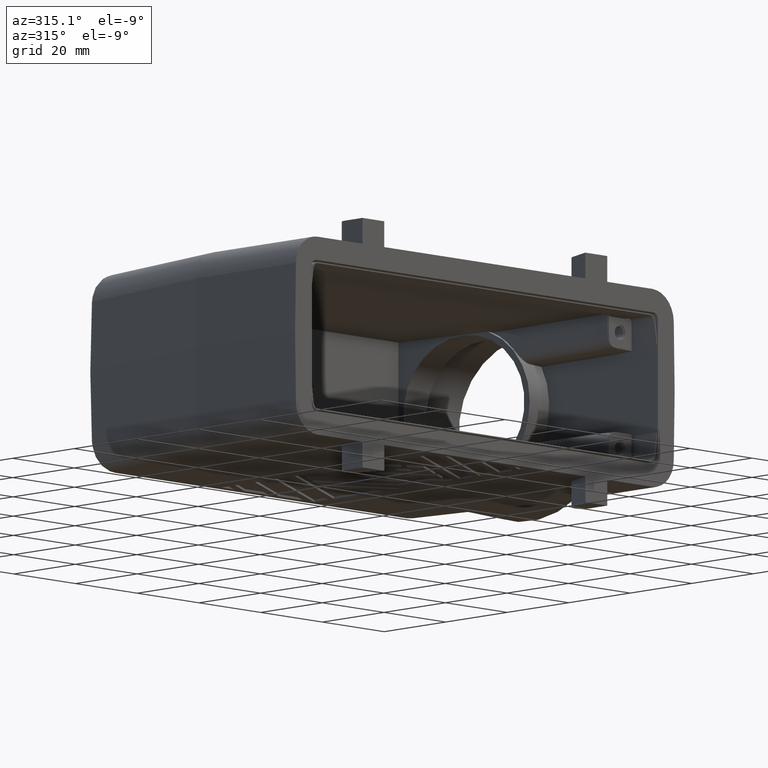
[diagram: clean part render]
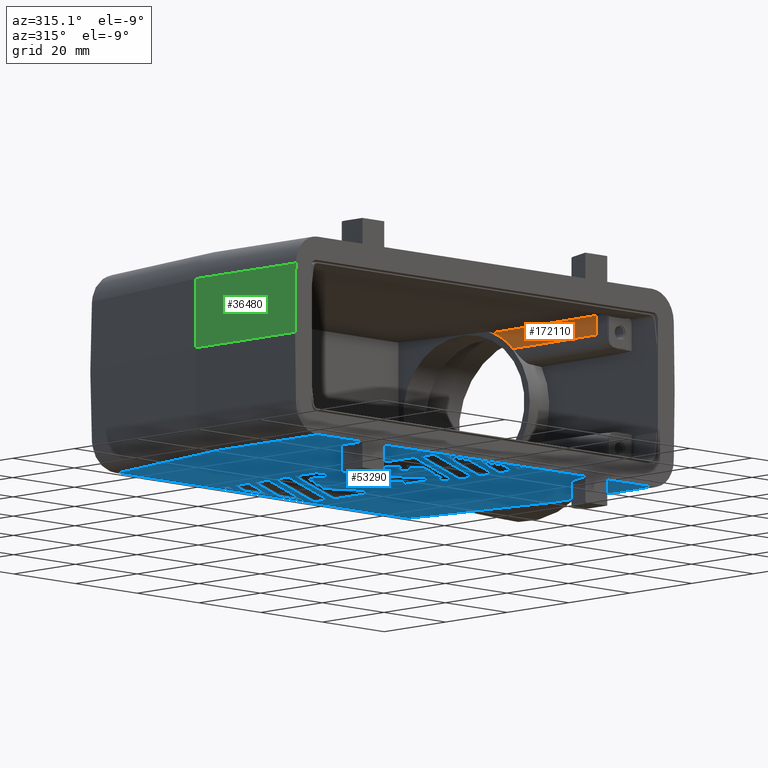
[diagram: same view with three faces highlighted in distinct colors, each labeled with its STEP entity id]
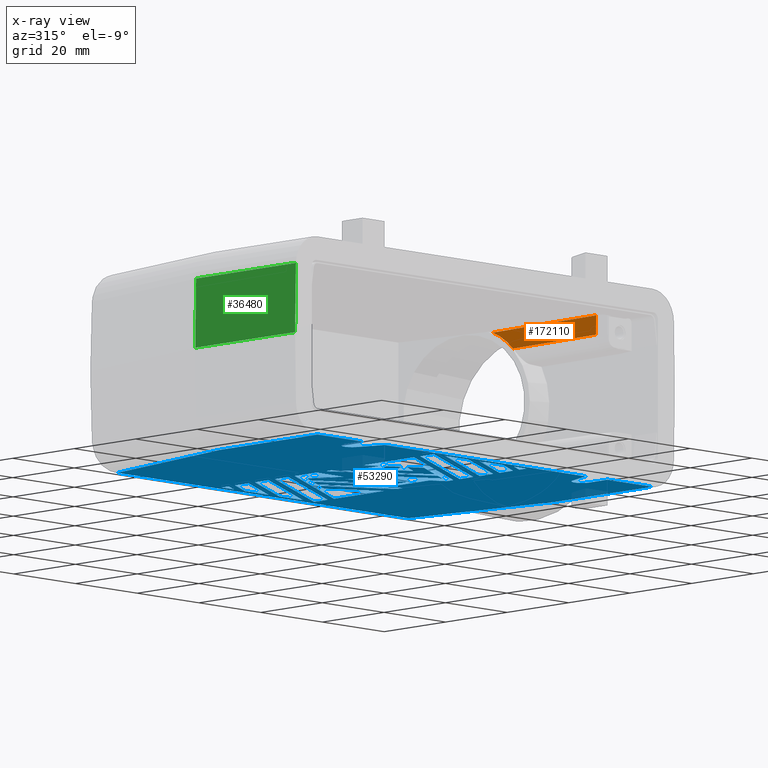
[diagram: x-ray of the same camera — body ghosted, the three highlighted faces saturated]
A machine part, auxiliary view with three faces highlighted in distinct colors.
The next image is the same camera in x-ray (body ghosted, the three faces saturated) — at least one of them is partly hidden behind the body in this view.
Their STEP definitions:

[orange] entity #172110 — the highlighted planar face has unit normal (1, 0.0087, -0).
#102100=CARTESIAN_POINT('',(-50.7159591483634,36.1002591524269,
-12.969323861527));
#102110=VERTEX_POINT('',#102100);
#102140=CARTESIAN_POINT('',(-50.7159591483634,36.1002591524269,
-12.969323861527));
#102150=DIRECTION('',(6.2842788675904E-10,7.20110849077436E-8,
-0.999999999999997));
#102160=VECTOR('',#102150,1.);
#102170=LINE('',#102140,#102160);
#102180=CARTESIAN_POINT('',(-50.7159591433167,36.1002597307246,
-17.4694571257557));
#102190=VERTEX_POINT('',#102180);
#102200=EDGE_CURVE('',#102110,#102190,#102170,.T.);
#164160=CARTESIAN_POINT('',(-50.424361898708,69.513994371855,
-17.1778598811471));
#164170=VERTEX_POINT('',#164160);
#164200=CARTESIAN_POINT('',(-50.363593568047,76.4773553529147,
-1.7767435493294E-14));
#164210=DIRECTION('',(-0.999961923064171,0.00872653549837365,
-2.13738475314579E-18));
#164220=DIRECTION('',(-0.00872653549837365,-0.999961923064171,
-4.27213066493084E-18));
#164230=AXIS2_PLACEMENT_3D('',#164200,#164210,#164220);
#164240=ELLIPSE('',#164230,18.7572443227051,18.5);
#164250=CARTESIAN_POINT('',(-50.4823175951255,62.8729293520793,
-12.7356823082891));
#164260=VERTEX_POINT('',#164250);
#164270=EDGE_CURVE('',#164170,#164260,#164240,.T.);
#167400=CARTESIAN_POINT('',(-50.5442223999294,55.7793413330826,
-12.797587113093));
#167410=DIRECTION('',(0.00872620324394394,0.99992385047757,
0.00872620324394422));
#167420=VECTOR('',#167410,1.);
#167430=LINE('',#167400,#167420);
#167440=EDGE_CURVE('',#102110,#164260,#167430,.T.);
#169360=CARTESIAN_POINT('',(-50.2097996484293,94.100393,
-3.14366483609111E-14));
#169370=DIRECTION('',(-0.999961923064171,0.00872653549837365,
-2.13738475314579E-18));
#169380=DIRECTION('',(-0.00872653549837365,-0.999961923064171,
2.44920033669954E-16));
#169390=AXIS2_PLACEMENT_3D('',#169360,#169370,#169380);
#169400=PLANE('',#169390);
#171860=CARTESIAN_POINT('',(-50.5439558563039,55.8098842073269,
-17.2974538387429));
#171870=DIRECTION('',(-0.00872620324394394,-0.99992385047757,
-0.00872620324394422));
#171880=VECTOR('',#171870,1.);
#171890=LINE('',#171860,#171880);
#171900=EDGE_CURVE('',#164170,#102190,#171890,.T.);
#172050=ORIENTED_EDGE('',*,*,#164270,.T.);
#172060=ORIENTED_EDGE('',*,*,#171900,.F.);
#172070=ORIENTED_EDGE('',*,*,#102200,.T.);
#172080=ORIENTED_EDGE('',*,*,#167440,.F.);
#172090=EDGE_LOOP('',(#172080,#172070,#172060,#172050));
#172100=FACE_OUTER_BOUND('',#172090,.T.);
#172110=ADVANCED_FACE('',(#172100),#169400,.F.);

[blue] entity #53290 — the highlighted planar face has unit normal (0, -0, -1).
#550=CARTESIAN_POINT('',(45.6034979824379,-2.16534547640347,23.));
#560=DIRECTION('',(-0.866025403784439,0.499999999999999,0.));
#570=VECTOR('',#560,1.);
#580=LINE('',#550,#570);
#590=CARTESIAN_POINT('',(-2.54650201756059,25.6340699850761,23.));
#600=VERTEX_POINT('',#590);
#610=CARTESIAN_POINT('',(-17.7465020175615,34.4097940767589,23.));
#620=VERTEX_POINT('',#610);
#630=EDGE_CURVE('',#600,#620,#580,.T.);
#2380=CARTESIAN_POINT('',(-49.8624009179002,96.2508347173039,23.));
#2390=VERTEX_POINT('',#2380);
#2420=CARTESIAN_POINT('',(-56.9932316183049,55.8098842073269,23.));
#2430=DIRECTION('',(0.17364817766693,0.984807753012208,
-2.4120833250038E-16));
#2440=VECTOR('',#2430,1.);
#2450=LINE('',#2420,#2440);
#2460=CARTESIAN_POINT('',(-53.2589778486338,76.9878897211014,23.));
#2470=VERTEX_POINT('',#2460);
#2480=EDGE_CURVE('',#2470,#2390,#2450,.T.);
#8110=CARTESIAN_POINT('',(12.2534979824388,72.9767920586257,23.));
#8120=VERTEX_POINT('',#8110);
#8290=CARTESIAN_POINT('',(12.2534979824388,77.3646541044669,23.));
#8300=VERTEX_POINT('',#8290);
#8330=CARTESIAN_POINT('',(12.2534979824388,55.8098842073269,23.));
#8340=DIRECTION('',(0.,1.,0.));
#8350=VECTOR('',#8340,1.);
#8360=LINE('',#8330,#8350);
#8370=EDGE_CURVE('',#8120,#8300,#8360,.T.);
#21600=CARTESIAN_POINT('',(-6.54650201756086,94.6851621801554,23.));
#21610=VERTEX_POINT('',#21600);
#21690=CARTESIAN_POINT('',(-14.1465020175609,94.6851621801554,23.));
#21700=VERTEX_POINT('',#21690);
#21730=CARTESIAN_POINT('',(45.6034979824379,94.6851621801554,23.));
#21740=DIRECTION('',(-1.,0.,0.));
#21750=VECTOR('',#21740,1.);
#21760=LINE('',#21730,#21750);
#21770=EDGE_CURVE('',#21610,#21700,#21760,.T.);
#41060=CARTESIAN_POINT('',(-56.9661546824022,55.9634451416428,23.));
#41070=VERTEX_POINT('',#41060);
#41080=EDGE_CURVE('',#41070,#2470,#2450,.T.);
#45420=CARTESIAN_POINT('',(12.2534979824388,32.1003930000004,23.));
#45430=VERTEX_POINT('',#45420);
#45510=CARTESIAN_POINT('',(12.2534979824388,48.4971406449864,23.));
#45520=VERTEX_POINT('',#45510);
#45550=EDGE_CURVE('',#45430,#45520,#8360,.T.);
#45760=CARTESIAN_POINT('',(-42.396502017561,29.900393,23.));
#45770=VERTEX_POINT('',#45760);
#45820=CARTESIAN_POINT('',(-39.996502017561,29.900393,23.));
#45830=DIRECTION('',(0.,0.,1.));
#45840=DIRECTION('',(1.,1.22464679914735E-16,0.));
#45850=AXIS2_PLACEMENT_3D('',#45820,#45830,#45840);
#45860=CIRCLE('',#45850,2.4);
#45870=CARTESIAN_POINT('',(-37.7412397276748,30.7212413439816,23.));
#45880=VERTEX_POINT('',#45870);
#45890=EDGE_CURVE('',#45880,#45770,#45860,.T.);
#46210=CARTESIAN_POINT('',(-56.9661546824022,55.8098842073269,23.));
#46220=DIRECTION('',(0.,1.,-2.44929359829471E-16));
#46230=VECTOR('',#46220,1.);
#46240=LINE('',#46210,#46230);
#46250=CARTESIAN_POINT('',(-56.9661546824022,24.1117412440545,23.));
#46260=VERTEX_POINT('',#46250);
#46270=EDGE_CURVE('',#46260,#41070,#46240,.T.);
#47910=CARTESIAN_POINT('',(41.192045,78.561451,23.));
#47920=DIRECTION('',(0.,0.,1.));
#47930=DIRECTION('',(1.,0.,0.));
#47940=AXIS2_PLACEMENT_3D('',#47910,#47920,#47930);
#47950=PLANE('',#47940);
#47960=CARTESIAN_POINT('',(45.6034979824379,58.1100226269936,23.));
#47970=DIRECTION('',(-0.866025403784441,0.499999999999996,0.));
#47980=VECTOR('',#47970,1.);
#47990=LINE('',#47960,#47980);
#48000=CARTESIAN_POINT('',(-17.7465020175615,94.6851621801556,23.));
#48010=VERTEX_POINT('',#48000);
#48020=EDGE_CURVE('',#8300,#48010,#47990,.T.);
#48030=ORIENTED_EDGE('',*,*,#48020,.F.);
#48040=CARTESIAN_POINT('',(-17.7465020175615,55.8098842073269,23.));
#48050=DIRECTION('',(0.,-1.,0.));
#48060=VECTOR('',#48050,1.);
#48070=LINE('',#48040,#48060);
#48080=CARTESIAN_POINT('',(-17.7465020175615,90.2973001343146,23.));
#48090=VERTEX_POINT('',#48080);
#48100=EDGE_CURVE('',#48010,#48090,#48070,.T.);
#48110=ORIENTED_EDGE('',*,*,#48100,.F.);
#48120=CARTESIAN_POINT('',(45.6034979824379,53.7221605811523,23.));
#48130=DIRECTION('',(0.86602540378444,-0.499999999999998,0.));
#48140=VECTOR('',#48130,1.);
#48150=LINE('',#48120,#48140);
#48160=EDGE_CURVE('',#48090,#8120,#48150,.T.);
#48170=ORIENTED_EDGE('',*,*,#48160,.F.);
#48180=ORIENTED_EDGE('',*,*,#8370,.F.);
#48190=EDGE_LOOP('',(#48180,#48170,#48110,#48030));
#48200=FACE_BOUND('',#48190,.T.);
#48210=CARTESIAN_POINT('',(45.6034979824379,10.7673005534443,23.));
#48220=DIRECTION('',(-0.86602540378444,0.499999999999997,0.));
#48230=VECTOR('',#48220,1.);
#48240=LINE('',#48210,#48230);
#48250=CARTESIAN_POINT('',(12.2534979824388,30.0219320309177,23.));
#48260=VERTEX_POINT('',#48250);
#48270=CARTESIAN_POINT('',(-17.7465020175615,47.3424401066065,23.));
#48280=VERTEX_POINT('',#48270);
#48290=EDGE_CURVE('',#48260,#48280,#48240,.T.);
#48300=ORIENTED_EDGE('',*,*,#48290,.F.);
#48310=CARTESIAN_POINT('',(-17.7465020175615,42.9545780607653,23.));
#48320=VERTEX_POINT('',#48310);
#48330=EDGE_CURVE('',#48280,#48320,#48070,.T.);
#48340=ORIENTED_EDGE('',*,*,#48330,.F.);
#48350=CARTESIAN_POINT('',(45.6034979824379,6.37943850760217,23.));
#48360=DIRECTION('',(0.866025403784435,-0.500000000000007,0.));
#48370=VECTOR('',#48360,1.);
#48380=LINE('',#48350,#48370);
#48390=CARTESIAN_POINT('',(12.2534979824388,25.6340699850761,23.));
#48400=VERTEX_POINT('',#48390);
#48410=EDGE_CURVE('',#48320,#48400,#48380,.T.);
#48420=ORIENTED_EDGE('',*,*,#48410,.F.);
#48430=EDGE_CURVE('',#48400,#48260,#8360,.T.);
#48440=ORIENTED_EDGE('',*,*,#48430,.F.);
#48450=EDGE_LOOP('',(#48440,#48420,#48340,#48300));
#48460=FACE_BOUND('',#48450,.T.);
#48470=ORIENTED_EDGE('',*,*,#630,.F.);
#48480=CARTESIAN_POINT('',(-17.7465020175615,55.8098842073269,23.));
#48490=DIRECTION('',(0.,-1.,0.));
#48500=VECTOR('',#48490,1.);
#48510=LINE('',#48480,#48500);
#48520=CARTESIAN_POINT('',(-17.7465020175615,30.0219320309178,23.));
#48530=VERTEX_POINT('',#48520);
#48540=EDGE_CURVE('',#620,#48530,#48510,.T.);
#48550=ORIENTED_EDGE('',*,*,#48540,.F.);
#48560=CARTESIAN_POINT('',(45.6034979824379,-6.55320752224459,23.));
#48570=DIRECTION('',(0.866025403784439,-0.499999999999999,0.));
#48580=VECTOR('',#48570,1.);
#48590=LINE('',#48560,#48580);
#48600=CARTESIAN_POINT('',(-10.1465020175606,25.6340699850761,23.));
#48610=VERTEX_POINT('',#48600);
#48620=EDGE_CURVE('',#48530,#48610,#48590,.T.);
#48630=ORIENTED_EDGE('',*,*,#48620,.F.);
#48640=CARTESIAN_POINT('',(45.6034979824379,25.6340699850761,23.));
#48650=DIRECTION('',(1.,0.,0.));
#48660=VECTOR('',#48650,1.);
#48670=LINE('',#48640,#48660);
#48680=EDGE_CURVE('',#48610,#600,#48670,.T.);
#48690=ORIENTED_EDGE('',*,*,#48680,.F.);
#48700=EDGE_LOOP('',(#48690,#48630,#48550,#48470));
#48710=FACE_BOUND('',#48700,.T.);
#48720=CARTESIAN_POINT('',(45.6034979824379,4.30097753852051,23.));
#48730=DIRECTION('',(-0.86602540378444,0.499999999999997,0.));
#48740=VECTOR('',#48730,1.);
#48750=LINE('',#48720,#48740);
#48760=CARTESIAN_POINT('',(8.65349798243954,25.6340699850761,23.));
#48770=VERTEX_POINT('',#48760);
#48780=CARTESIAN_POINT('',(-17.7465020175615,40.8761170916827,23.));
#48790=VERTEX_POINT('',#48780);
#48800=EDGE_CURVE('',#48770,#48790,#48750,.T.);
#48810=ORIENTED_EDGE('',*,*,#48800,.F.);
#48820=CARTESIAN_POINT('',(-17.7465020175615,36.4882550458416,23.));
#48830=VERTEX_POINT('',#48820);
#48840=EDGE_CURVE('',#48790,#48830,#48070,.T.);
#48850=ORIENTED_EDGE('',*,*,#48840,.F.);
#48860=CARTESIAN_POINT('',(45.6034979824379,-0.086884507320967,23.));
#48870=DIRECTION('',(0.866025403784438,-0.500000000000001,0.));
#48880=VECTOR('',#48870,1.);
#48890=LINE('',#48860,#48880);
#48900=CARTESIAN_POINT('',(1.05349798243933,25.6340699850761,23.));
#48910=VERTEX_POINT('',#48900);
#48920=EDGE_CURVE('',#48830,#48910,#48890,.T.);
#48930=ORIENTED_EDGE('',*,*,#48920,.F.);
#48940=CARTESIAN_POINT('',(45.6034979824379,25.6340699850761,23.));
#48950=DIRECTION('',(1.,0.,0.));
#48960=VECTOR('',#48950,1.);
#48970=LINE('',#48940,#48960);
#48980=EDGE_CURVE('',#48910,#48770,#48970,.T.);
#48990=ORIENTED_EDGE('',*,*,#48980,.F.);
#49000=EDGE_LOOP('',(#48990,#48930,#48850,#48810));
#49010=FACE_BOUND('',#49000,.T.);
#49020=CARTESIAN_POINT('',(45.6034979824379,66.6548066109998,23.));
#49030=DIRECTION('',(0.866025403784438,-0.5,0.));
#49040=VECTOR('',#49030,1.);
#49050=LINE('',#49020,#49040);
#49060=CARTESIAN_POINT('',(-2.94650201756078,94.6851621801554,23.));
#49070=VERTEX_POINT('',#49060);
#49080=CARTESIAN_POINT('',(12.2534979824388,85.9094380884733,23.));
#49090=VERTEX_POINT('',#49080);
#49100=EDGE_CURVE('',#49070,#49090,#49050,.T.);
#49110=ORIENTED_EDGE('',*,*,#49100,.F.);
#49120=CARTESIAN_POINT('',(12.2534979824388,90.2973001343145,23.));
#49130=VERTEX_POINT('',#49120);
#49140=EDGE_CURVE('',#49090,#49130,#8360,.T.);
#49150=ORIENTED_EDGE('',*,*,#49140,.F.);
#49160=CARTESIAN_POINT('',(45.6034979824379,71.0426686568409,23.));
#49170=DIRECTION('',(-0.866025403784439,0.5,0.));
#49180=VECTOR('',#49170,1.);
#49190=LINE('',#49160,#49180);
#49200=CARTESIAN_POINT('',(4.65349798243919,94.6851621801554,23.));
#49210=VERTEX_POINT('',#49200);
#49220=EDGE_CURVE('',#49130,#49210,#49190,.T.);
#49230=ORIENTED_EDGE('',*,*,#49220,.F.);
#49240=EDGE_CURVE('',#49210,#49070,#21760,.T.);
#49250=ORIENTED_EDGE('',*,*,#49240,.F.);
#49260=EDGE_LOOP('',(#49250,#49230,#49150,#49110));
#49270=FACE_BOUND('',#49260,.T.);
#49280=CARTESIAN_POINT('',(12.2534979824388,94.6851621801554,23.));
#49290=VERTEX_POINT('',#49280);
#49300=CARTESIAN_POINT('',(8.25349798243919,94.6851621801554,23.));
#49310=VERTEX_POINT('',#49300);
#49320=EDGE_CURVE('',#49290,#49310,#21760,.T.);
#49330=ORIENTED_EDGE('',*,*,#49320,.F.);
#49340=CARTESIAN_POINT('',(45.6034979824379,73.1211296259236,23.));
#49350=DIRECTION('',(0.866025403784439,-0.499999999999999,0.));
#49360=VECTOR('',#49350,1.);
#49370=LINE('',#49340,#49360);
#49380=CARTESIAN_POINT('',(12.2534979824388,92.3757611033971,23.));
#49390=VERTEX_POINT('',#49380);
#49400=EDGE_CURVE('',#49310,#49390,#49370,.T.);
#49410=ORIENTED_EDGE('',*,*,#49400,.F.);
#49420=EDGE_CURVE('',#49390,#49290,#8360,.T.);
#49430=ORIENTED_EDGE('',*,*,#49420,.F.);
#49440=EDGE_LOOP('',(#49430,#49410,#49330));
#49450=FACE_BOUND('',#49440,.T.);
#49460=CARTESIAN_POINT('',(45.6034979824379,64.5763456419172,23.));
#49470=DIRECTION('',(-0.86602540378444,0.499999999999998,0.));
#49480=VECTOR('',#49470,1.);
#49490=LINE('',#49460,#49480);
#49500=CARTESIAN_POINT('',(12.2534979824388,83.8309771193907,23.));
#49510=VERTEX_POINT('',#49500);
#49520=EDGE_CURVE('',#49510,#21610,#49490,.T.);
#49530=ORIENTED_EDGE('',*,*,#49520,.F.);
#49540=ORIENTED_EDGE('',*,*,#21770,.F.);
#49550=CARTESIAN_POINT('',(45.6034979824379,60.1884835960761,23.));
#49560=DIRECTION('',(0.86602540378444,-0.499999999999998,0.));
#49570=VECTOR('',#49560,1.);
#49580=LINE('',#49550,#49570);
#49590=CARTESIAN_POINT('',(12.2534979824388,79.4431150735496,23.));
#49600=VERTEX_POINT('',#49590);
#49610=EDGE_CURVE('',#21700,#49600,#49580,.T.);
#49620=ORIENTED_EDGE('',*,*,#49610,.F.);
#49630=EDGE_CURVE('',#49600,#49510,#8360,.T.);
#49640=ORIENTED_EDGE('',*,*,#49630,.F.);
#49650=EDGE_LOOP('',(#49640,#49620,#49540,#49530));
#49660=FACE_BOUND('',#49650,.T.);
#49670=CARTESIAN_POINT('',(45.6034979824379,-8.63166849132722,23.));
#49680=DIRECTION('',(-0.866025403784439,0.499999999999999,0.));
#49690=VECTOR('',#49680,1.);
#49700=LINE('',#49670,#49690);
#49710=CARTESIAN_POINT('',(-13.7465020175606,25.6340699850761,23.));
#49720=VERTEX_POINT('',#49710);
#49730=CARTESIAN_POINT('',(-17.7465020175615,27.9434710618351,23.));
#49740=VERTEX_POINT('',#49730);
#49750=EDGE_CURVE('',#49720,#49740,#49700,.T.);
#49760=ORIENTED_EDGE('',*,*,#49750,.F.);
#49770=CARTESIAN_POINT('',(-17.7465020175615,55.8098842073269,23.));
#49780=DIRECTION('',(0.,-1.,0.));
#49790=VECTOR('',#49780,1.);
#49800=LINE('',#49770,#49790);
#49810=CARTESIAN_POINT('',(-17.7465020175615,25.6340699850761,23.));
#49820=VERTEX_POINT('',#49810);
#49830=EDGE_CURVE('',#49740,#49820,#49800,.T.);
#49840=ORIENTED_EDGE('',*,*,#49830,.F.);
#49850=CARTESIAN_POINT('',(45.6034979824379,25.6340699850761,23.));
#49860=DIRECTION('',(1.,0.,0.));
#49870=VECTOR('',#49860,1.);
#49880=LINE('',#49850,#49870);
#49890=EDGE_CURVE('',#49820,#49720,#49880,.T.);
#49900=ORIENTED_EDGE('',*,*,#49890,.F.);
#49910=EDGE_LOOP('',(#49900,#49840,#49760));
#49920=FACE_BOUND('',#49910,.T.);
#49930=CARTESIAN_POINT('',(45.6034979824379,79.991597829279,23.));
#49940=DIRECTION('',(-0.866025403784438,-0.500000000000001,0.));
#49950=VECTOR('',#49940,1.);
#49960=LINE('',#49930,#49950);
#49970=CARTESIAN_POINT('',(12.2534979824388,60.7369663518054,23.));
#49980=VERTEX_POINT('',#49970);
#49990=CARTESIAN_POINT('',(-10.7465020175609,47.4579101604442,23.));
#50000=VERTEX_POINT('',#49990);
#50010=EDGE_CURVE('',#49980,#50000,#49960,.T.);
#50020=ORIENTED_EDGE('',*,*,#50010,.F.);
#50030=CARTESIAN_POINT('',(45.6034979824379,14.9242224916092,23.));
#50040=DIRECTION('',(-0.866025403784438,0.500000000000002,0.));
#50050=VECTOR('',#50040,1.);
#50060=LINE('',#50030,#50050);
#50070=CARTESIAN_POINT('',(-14.3465020175608,49.5363711295267,23.));
#50080=VERTEX_POINT('',#50070);
#50090=EDGE_CURVE('',#50000,#50080,#50060,.T.);
#50100=ORIENTED_EDGE('',*,*,#50090,.F.);
#50110=CARTESIAN_POINT('',(45.6034979824379,84.1485197674443,23.));
#50120=DIRECTION('',(0.866025403784437,0.500000000000002,0.));
#50130=VECTOR('',#50120,1.);
#50140=LINE('',#50110,#50130);
#50150=CARTESIAN_POINT('',(4.0534979824392,60.1596160826159,23.));
#50160=VERTEX_POINT('',#50150);
#50170=EDGE_CURVE('',#50080,#50160,#50140,.T.);
#50180=ORIENTED_EDGE('',*,*,#50170,.F.);
#50190=CARTESIAN_POINT('',(45.6034979824379,60.1596160826159,23.));
#50200=DIRECTION('',(-1.,0.,0.));
#50210=VECTOR('',#50200,1.);
#50220=LINE('',#50190,#50210);
#50230=CARTESIAN_POINT('',(-2.74650201756101,60.1596160826159,23.));
#50240=VERTEX_POINT('',#50230);
#50250=EDGE_CURVE('',#50160,#50240,#50220,.T.);
#50260=ORIENTED_EDGE('',*,*,#50250,.F.);
#50270=CARTESIAN_POINT('',(-5.25782088666184,55.8098842073269,23.));
#50280=DIRECTION('',(0.500000000000001,0.866025403784438,0.));
#50290=VECTOR('',#50280,1.);
#50300=LINE('',#50270,#50290);
#50310=CARTESIAN_POINT('',(0.653497982439106,66.0485888283503,23.));
#50320=VERTEX_POINT('',#50310);
#50330=EDGE_CURVE('',#50240,#50320,#50300,.T.);
#50340=ORIENTED_EDGE('',*,*,#50330,.F.);
#50350=CARTESIAN_POINT('',(45.6034979824379,92.0004834284235,23.));
#50360=DIRECTION('',(-0.866025403784437,-0.500000000000002,0.));
#50370=VECTOR('',#50360,1.);
#50380=LINE('',#50350,#50370);
#50390=CARTESIAN_POINT('',(-12.346502017561,58.543035328885,23.));
#50400=VERTEX_POINT('',#50390);
#50410=EDGE_CURVE('',#50320,#50400,#50380,.T.);
#50420=ORIENTED_EDGE('',*,*,#50410,.F.);
#50430=CARTESIAN_POINT('',(-12.3465020175609,55.8098842073269,23.));
#50440=DIRECTION('',(-2.73488026507881E-14,1.,0.));
#50450=VECTOR('',#50440,1.);
#50460=LINE('',#50430,#50450);
#50470=CARTESIAN_POINT('',(-12.3465020175611,62.6999572670504,23.));
#50480=VERTEX_POINT('',#50470);
#50490=EDGE_CURVE('',#50400,#50480,#50460,.T.);
#50500=ORIENTED_EDGE('',*,*,#50490,.F.);
#50510=CARTESIAN_POINT('',(45.6034979824379,96.1574053665883,23.));
#50520=DIRECTION('',(0.866025403784442,0.499999999999995,0.));
#50530=VECTOR('',#50520,1.);
#50540=LINE('',#50510,#50530);
#50550=CARTESIAN_POINT('',(5.25349798243882,72.8613220047877,23.));
#50560=VERTEX_POINT('',#50550);
#50570=EDGE_CURVE('',#50480,#50560,#50540,.T.);
#50580=ORIENTED_EDGE('',*,*,#50570,.F.);
#50590=CARTESIAN_POINT('',(45.6034979824379,49.5652386429864,23.));
#50600=DIRECTION('',(0.866025403784434,-0.500000000000007,0.));
#50610=VECTOR('',#50600,1.);
#50620=LINE('',#50590,#50610);
#50630=CARTESIAN_POINT('',(7.87118943606294,71.3499971393824,23.));
#50640=VERTEX_POINT('',#50630);
#50650=EDGE_CURVE('',#50560,#50640,#50620,.T.);
#50660=ORIENTED_EDGE('',*,*,#50650,.F.);
#50670=CARTESIAN_POINT('',(-1.10089894849657,55.8098842073269,23.));
#50680=DIRECTION('',(-0.500000000000002,-0.866025403784437,0.));
#50690=VECTOR('',#50680,1.);
#50700=LINE('',#50670,#50690);
#50710=CARTESIAN_POINT('',(3.488880889687,63.759616082616,23.));
#50720=VERTEX_POINT('',#50710);
#50730=EDGE_CURVE('',#50640,#50720,#50700,.T.);
#50740=ORIENTED_EDGE('',*,*,#50730,.F.);
#50750=CARTESIAN_POINT('',(45.6034979824379,63.7596160826152,23.));
#50760=DIRECTION('',(1.,-1.93553325111048E-14,0.));
#50770=VECTOR('',#50760,1.);
#50780=LINE('',#50750,#50770);
#50790=CARTESIAN_POINT('',(12.2534979824388,63.7596160826159,23.));
#50800=VERTEX_POINT('',#50790);
#50810=EDGE_CURVE('',#50720,#50800,#50780,.T.);
#50820=ORIENTED_EDGE('',*,*,#50810,.F.);
#50830=CARTESIAN_POINT('',(12.2534979824388,70.8983310895431,23.));
#50840=VERTEX_POINT('',#50830);
#50850=EDGE_CURVE('',#50800,#50840,#8360,.T.);
#50860=ORIENTED_EDGE('',*,*,#50850,.F.);
#50870=CARTESIAN_POINT('',(45.6034979824379,51.6436996120697,23.));
#50880=DIRECTION('',(-0.86602540378444,0.499999999999997,0.));
#50890=VECTOR('',#50880,1.);
#50900=LINE('',#50870,#50890);
#50910=CARTESIAN_POINT('',(-17.7465020175615,88.2188391652319,23.));
#50920=VERTEX_POINT('',#50910);
#50930=EDGE_CURVE('',#50840,#50920,#50900,.T.);
#50940=ORIENTED_EDGE('',*,*,#50930,.F.);
#50950=CARTESIAN_POINT('',(-17.7465020175615,72.0530316279218,23.));
#50960=VERTEX_POINT('',#50950);
#50970=EDGE_CURVE('',#50920,#50960,#48070,.T.);
#50980=ORIENTED_EDGE('',*,*,#50970,.F.);
#50990=CARTESIAN_POINT('',(45.6034979824379,108.628171181086,23.));
#51000=DIRECTION('',(0.866025403784431,0.500000000000014,0.));
#51010=VECTOR('',#51000,1.);
#51020=LINE('',#50990,#51010);
#51030=CARTESIAN_POINT('',(-5.54650201756107,79.0967049120357,23.));
#51040=VERTEX_POINT('',#51030);
#51050=EDGE_CURVE('',#50960,#51040,#51020,.T.);
#51060=ORIENTED_EDGE('',*,*,#51050,.F.);
#51070=CARTESIAN_POINT('',(-1.94650201756119,77.0182439429531,23.));
#51080=VERTEX_POINT('',#51070);
#51090=EDGE_CURVE('',#51040,#51080,#50620,.T.);
#51100=ORIENTED_EDGE('',*,*,#51090,.F.);
#51110=CARTESIAN_POINT('',(45.6034979824379,104.47124924292,23.));
#51120=DIRECTION('',(-0.866025403784436,-0.500000000000005,0.));
#51130=VECTOR('',#51120,1.);
#51140=LINE('',#51110,#51130);
#51150=CARTESIAN_POINT('',(-17.7465020175615,67.8961096897567,23.));
#51160=VERTEX_POINT('',#51150);
#51170=EDGE_CURVE('',#51080,#51160,#51140,.T.);
#51180=ORIENTED_EDGE('',*,*,#51170,.F.);
#51190=CARTESIAN_POINT('',(-17.7465020175615,65.8176487206742,23.));
#51200=VERTEX_POINT('',#51190);
#51210=EDGE_CURVE('',#51160,#51200,#48070,.T.);
#51220=ORIENTED_EDGE('',*,*,#51210,.F.);
#51230=CARTESIAN_POINT('',(45.6034979824379,102.392788273836,23.));
#51240=DIRECTION('',(0.866025403784443,0.499999999999993,0.));
#51250=VECTOR('',#51240,1.);
#51260=LINE('',#51230,#51250);
#51270=CARTESIAN_POINT('',(-0.146502017561097,75.9790134584117,23.));
#51280=VERTEX_POINT('',#51270);
#51290=EDGE_CURVE('',#51200,#51280,#51260,.T.);
#51300=ORIENTED_EDGE('',*,*,#51290,.F.);
#51310=CARTESIAN_POINT('',(3.45349798243913,73.9005524893289,23.));
#51320=VERTEX_POINT('',#51310);
#51330=EDGE_CURVE('',#51280,#51320,#50620,.T.);
#51340=ORIENTED_EDGE('',*,*,#51330,.F.);
#51350=CARTESIAN_POINT('',(45.6034979824379,98.2358663356705,23.));
#51360=DIRECTION('',(-0.866025403784443,-0.499999999999993,0.));
#51370=VECTOR('',#51360,1.);
#51380=LINE('',#51350,#51370);
#51390=CARTESIAN_POINT('',(-14.1465020175609,63.7391877515916,23.));
#51400=VERTEX_POINT('',#51390);
#51410=EDGE_CURVE('',#51320,#51400,#51380,.T.);
#51420=ORIENTED_EDGE('',*,*,#51410,.F.);
#51430=CARTESIAN_POINT('',(-14.1465020175611,55.8098842073269,23.));
#51440=DIRECTION('',(-2.37748113952881E-14,-1.,0.));
#51450=VECTOR('',#51440,1.);
#51460=LINE('',#51430,#51450);
#51470=CARTESIAN_POINT('',(-14.1465020175612,53.5778230138544,23.));
#51480=VERTEX_POINT('',#51470);
#51490=EDGE_CURVE('',#51400,#51480,#51460,.T.);
#51500=ORIENTED_EDGE('',*,*,#51490,.F.);
#51510=CARTESIAN_POINT('',(45.6034979824379,88.0745015979393,23.));
#51520=DIRECTION('',(-0.866025403784406,-0.500000000000057,0.));
#51530=VECTOR('',#51520,1.);
#51540=LINE('',#51510,#51530);
#51550=CARTESIAN_POINT('',(-17.7465020175615,51.4993620447712,23.));
#51560=VERTEX_POINT('',#51550);
#51570=EDGE_CURVE('',#51480,#51560,#51540,.T.);
#51580=ORIENTED_EDGE('',*,*,#51570,.F.);
#51590=CARTESIAN_POINT('',(-17.7465020175615,49.4209010756891,23.));
#51600=VERTEX_POINT('',#51590);
#51610=EDGE_CURVE('',#51560,#51600,#48070,.T.);
#51620=ORIENTED_EDGE('',*,*,#51610,.F.);
#51630=CARTESIAN_POINT('',(45.6034979824379,12.845761522527,23.));
#51640=DIRECTION('',(0.86602540378444,-0.499999999999997,0.));
#51650=VECTOR('',#51640,1.);
#51660=LINE('',#51630,#51650);
#51670=EDGE_CURVE('',#51600,#45430,#51660,.T.);
#51680=ORIENTED_EDGE('',*,*,#51670,.F.);
#51690=ORIENTED_EDGE('',*,*,#45550,.F.);
#51700=CARTESIAN_POINT('',(45.6034979824379,67.7517721224627,23.));
#51710=DIRECTION('',(-0.866025403784408,-0.500000000000054,0.));
#51720=VECTOR('',#51710,1.);
#51730=LINE('',#51700,#51720);
#51740=CARTESIAN_POINT('',(8.65349798243906,46.4186796759036,23.));
#51750=VERTEX_POINT('',#51740);
#51760=EDGE_CURVE('',#45520,#51750,#51730,.T.);
#51770=ORIENTED_EDGE('',*,*,#51760,.F.);
#51780=CARTESIAN_POINT('',(8.65349798243911,55.8098842073269,23.));
#51790=DIRECTION('',(4.73344661263653E-15,1.,0.));
#51800=VECTOR('',#51790,1.);
#51810=LINE('',#51780,#51800);
#51820=CARTESIAN_POINT('',(8.65349798243908,52.4231224754753,23.));
#51830=VERTEX_POINT('',#51820);
#51840=EDGE_CURVE('',#51750,#51830,#51810,.T.);
#51850=ORIENTED_EDGE('',*,*,#51840,.F.);
#51860=CARTESIAN_POINT('',(45.6034979824379,73.7562149220315,23.));
#51870=DIRECTION('',(-0.866025403784436,-0.500000000000004,0.));
#51880=VECTOR('',#51870,1.);
#51890=LINE('',#51860,#51880);
#51900=CARTESIAN_POINT('',(5.01234370925079,50.320901075689,23.));
#51910=VERTEX_POINT('',#51900);
#51920=EDGE_CURVE('',#51830,#51910,#51890,.T.);
#51930=ORIENTED_EDGE('',*,*,#51920,.F.);
#51940=CARTESIAN_POINT('',(1.84327782062231,55.8098842073269,23.));
#51950=DIRECTION('',(0.500000000000007,-0.866025403784435,0.));
#51960=VECTOR('',#51950,1.);
#51970=LINE('',#51940,#51960);
#51980=CARTESIAN_POINT('',(7.61234370925067,45.8175689760102,23.));
#51990=VERTEX_POINT('',#51980);
#52000=EDGE_CURVE('',#51910,#51990,#51970,.T.);
#52010=ORIENTED_EDGE('',*,*,#52000,.F.);
#52020=CARTESIAN_POINT('',(4.49465225562685,44.0175689760101,23.));
#52030=VERTEX_POINT('',#52020);
#52040=EDGE_CURVE('',#51990,#52030,#51730,.T.);
#52050=ORIENTED_EDGE('',*,*,#52040,.F.);
#52060=CARTESIAN_POINT('',(-2.31364411754303,55.8098842073269,23.));
#52070=DIRECTION('',(-0.500000000000011,0.866025403784432,0.));
#52080=VECTOR('',#52070,1.);
#52090=LINE('',#52060,#52080);
#52100=CARTESIAN_POINT('',(1.89465225562684,48.520901075689,23.));
#52110=VERTEX_POINT('',#52100);
#52120=EDGE_CURVE('',#52030,#52110,#52090,.T.);
#52130=ORIENTED_EDGE('',*,*,#52120,.F.);
#52140=CARTESIAN_POINT('',(-1.74650201756113,46.418679675903,23.));
#52150=VERTEX_POINT('',#52140);
#52160=EDGE_CURVE('',#52110,#52150,#51890,.T.);
#52170=ORIENTED_EDGE('',*,*,#52160,.F.);
#52180=CARTESIAN_POINT('',(45.6034979824379,19.0811444297743,23.));
#52190=DIRECTION('',(0.866025403784435,-0.500000000000006,0.));
#52200=VECTOR('',#52190,1.);
#52210=LINE('',#52180,#52200);
#52220=CARTESIAN_POINT('',(3.45349798243875,43.4164582761169,23.));
#52230=VERTEX_POINT('',#52220);
#52240=EDGE_CURVE('',#52150,#52230,#52210,.T.);
#52250=ORIENTED_EDGE('',*,*,#52240,.F.);
#52260=CARTESIAN_POINT('',(-0.146502017560991,41.3379973070341,23.));
#52270=VERTEX_POINT('',#52260);
#52280=EDGE_CURVE('',#52230,#52270,#51730,.T.);
#52290=ORIENTED_EDGE('',*,*,#52280,.F.);
#52300=CARTESIAN_POINT('',(-8.94650201756119,46.418679675903,23.));
#52310=VERTEX_POINT('',#52300);
#52320=EDGE_CURVE('',#52270,#52310,#50060,.T.);
#52330=ORIENTED_EDGE('',*,*,#52320,.F.);
#52340=CARTESIAN_POINT('',(45.6034979824379,77.9131368601953,23.));
#52350=DIRECTION('',(0.866025403784447,0.499999999999985,0.));
#52360=VECTOR('',#52350,1.);
#52370=LINE('',#52340,#52360);
#52380=CARTESIAN_POINT('',(12.2534979824388,58.6585053827225,23.));
#52390=VERTEX_POINT('',#52380);
#52400=EDGE_CURVE('',#52310,#52390,#52370,.T.);
#52410=ORIENTED_EDGE('',*,*,#52400,.F.);
#52420=EDGE_CURVE('',#52390,#49980,#8360,.T.);
#52430=ORIENTED_EDGE('',*,*,#52420,.F.);
#52440=EDGE_LOOP('',(#52430,#52410,#52330,#52290,#52250,#52170,#52130,
#52050,#52010,#51930,#51850,#51770,#51690,#51680,#51620,#51580,#51500,
#51420,#51340,#51300,#51220,#51180,#51100,#51060,#50980,#50940,#50860,
#50820,#50740,#50660,#50580,#50500,#50420,#50340,#50260,#50180,#50100,
#50020));
#52450=FACE_BOUND('',#52440,.T.);
#52460=CARTESIAN_POINT('',(41.3797549129457,55.8098842073269,23.));
#52470=DIRECTION('',(-0.34202014332567,-0.939692620785908,0.));
#52480=VECTOR('',#52470,1.);
#52490=LINE('',#52460,#52480);
#52500=CARTESIAN_POINT('',(32.2482356925528,30.7212413439816,23.));
#52510=VERTEX_POINT('',#52500);
#52520=CARTESIAN_POINT('',(29.8425743927999,24.1117412440545,23.));
#52530=VERTEX_POINT('',#52520);
#52540=EDGE_CURVE('',#52510,#52530,#52490,.T.);
#52550=ORIENTED_EDGE('',*,*,#52540,.F.);
#52560=CARTESIAN_POINT('',(45.6034979824379,24.1117412440545,23.));
#52570=DIRECTION('',(1.,0.,-0.));
#52580=VECTOR('',#52570,1.);
#52590=LINE('',#52560,#52580);
#52600=CARTESIAN_POINT('',(-35.3355784279219,24.1117412440545,23.));
#52610=VERTEX_POINT('',#52600);
#52620=EDGE_CURVE('',#52610,#52530,#52590,.T.);
#52630=ORIENTED_EDGE('',*,*,#52620,.T.);
#52640=CARTESIAN_POINT('',(-46.8727589480677,55.8098842073269,23.));
#52650=DIRECTION('',(-0.342020143325669,0.939692620785908,0.));
#52660=VECTOR('',#52650,1.);
#52670=LINE('',#52640,#52660);
#52680=EDGE_CURVE('',#52610,#45880,#52670,.T.);
#52690=ORIENTED_EDGE('',*,*,#52680,.F.);
#52700=ORIENTED_EDGE('',*,*,#45890,.F.);
#52710=CARTESIAN_POINT('',(-42.396502017561,55.8098842073269,23.));
#52720=DIRECTION('',(-0.,-1.,0.));
#52730=VECTOR('',#52720,1.);
#52740=LINE('',#52710,#52730);
#52750=CARTESIAN_POINT('',(-42.396502017561,24.1117412440545,23.));
#52760=VERTEX_POINT('',#52750);
#52770=EDGE_CURVE('',#45770,#52760,#52740,.T.);
#52780=ORIENTED_EDGE('',*,*,#52770,.F.);
#52790=EDGE_CURVE('',#46260,#52760,#52590,.T.);
#52800=ORIENTED_EDGE('',*,*,#52790,.T.);
#52810=ORIENTED_EDGE('',*,*,#46270,.F.);
#52820=ORIENTED_EDGE('',*,*,#41080,.F.);
#52830=ORIENTED_EDGE('',*,*,#2480,.F.);
#52840=CARTESIAN_POINT('',(45.6034979824379,96.2508347173039,23.));
#52850=DIRECTION('',(-1.,0.,1.49975978266186E-32));
#52860=VECTOR('',#52850,1.);
#52870=LINE('',#52840,#52860);
#52880=CARTESIAN_POINT('',(44.3693968827781,96.2508347173039,23.));
#52890=VERTEX_POINT('',#52880);
#52900=EDGE_CURVE('',#52890,#2390,#52870,.T.);
#52910=ORIENTED_EDGE('',*,*,#52900,.T.);
#52920=CARTESIAN_POINT('',(51.5002275831829,55.8098842073269,23.));
#52930=DIRECTION('',(-0.17364817766693,0.984807753012208,
-2.4120833250038E-16));
#52940=VECTOR('',#52930,1.);
#52950=LINE('',#52920,#52940);
#52960=CARTESIAN_POINT('',(51.4731506472802,55.9634451416428,23.));
#52970=VERTEX_POINT('',#52960);
#52980=EDGE_CURVE('',#52970,#52890,#52950,.T.);
#52990=ORIENTED_EDGE('',*,*,#52980,.T.);
#53000=CARTESIAN_POINT('',(51.4731506472802,55.8098842073269,23.));
#53010=DIRECTION('',(2.13762893932512E-18,1.,-2.44929359829471E-16));
#53020=VECTOR('',#53010,1.);
#53030=LINE('',#53000,#53020);
#53040=CARTESIAN_POINT('',(51.4731506472802,24.1117412440545,23.));
#53050=VERTEX_POINT('',#53040);
#53060=EDGE_CURVE('',#53050,#52970,#53030,.T.);
#53070=ORIENTED_EDGE('',*,*,#53060,.T.);
#53080=CARTESIAN_POINT('',(36.903497982439,24.1117412440545,23.));
#53090=VERTEX_POINT('',#53080);
#53100=EDGE_CURVE('',#53090,#53050,#52590,.T.);
#53110=ORIENTED_EDGE('',*,*,#53100,.T.);
#53120=CARTESIAN_POINT('',(36.903497982439,55.8098842073269,23.));
#53130=DIRECTION('',(-0.,1.,0.));
#53140=VECTOR('',#53130,1.);
#53150=LINE('',#53120,#53140);
#53160=CARTESIAN_POINT('',(36.903497982439,29.900393,23.));
#53170=VERTEX_POINT('',#53160);
#53180=EDGE_CURVE('',#53090,#53170,#53150,.T.);
#53190=ORIENTED_EDGE('',*,*,#53180,.F.);
#53200=CARTESIAN_POINT('',(34.503497982439,29.900393,23.));
#53210=DIRECTION('',(0.,0.,-1.));
#53220=DIRECTION('',(-1.,1.22464679914735E-16,0.));
#53230=AXIS2_PLACEMENT_3D('',#53200,#53210,#53220);
#53240=CIRCLE('',#53230,2.4);
#53250=EDGE_CURVE('',#52510,#53170,#53240,.T.);
#53260=ORIENTED_EDGE('',*,*,#53250,.T.);
#53270=EDGE_LOOP('',(#53260,#53190,#53110,#53070,#52990,#52910,#52830,
#52820,#52810,#52800,#52780,#52700,#52690,#52630,#52550));
#53280=FACE_OUTER_BOUND('',#53270,.T.);
#53290=ADVANCED_FACE('',(#48200,#48460,#48710,#49010,#49270,#49450,
#49660,#49920,#52450,#53280),#47950,.T.);

[green] entity #36480 — the highlighted planar face has unit normal (-0.9998, -0, 0.0175).
#8680=CARTESIAN_POINT('',(58.753497982439,56.6003930000003,
2.98416123146954E-13));
#8690=VERTEX_POINT('',#8680);
#8720=CARTESIAN_POINT('',(58.753497982439,55.8098842073269,
3.05395264787235E-13));
#8730=DIRECTION('',(6.12323399573677E-17,1.,-3.63046308663395E-15));
#8740=VECTOR('',#8730,1.);
#8750=LINE('',#8720,#8740);
#8760=CARTESIAN_POINT('',(58.753497982439,24.1117412440545,
4.20462067438672E-13));
#8770=VERTEX_POINT('',#8760);
#8780=EDGE_CURVE('',#8770,#8690,#8750,.T.);
#36180=CARTESIAN_POINT('',(58.753497982439,23.600393,1.1320640140595E-14
));
#36190=DIRECTION('',(0.999847695156391,-1.24583331318897E-16,
-0.0174524064372835));
#36200=DIRECTION('',(1.22464679914735E-16,1.,-1.22464679914735E-16));
#36210=AXIS2_PLACEMENT_3D('',#36180,#36190,#36200);
#36220=PLANE('',#36210);
#36230=CARTESIAN_POINT('',(58.753497982439,24.1117412440545,0.));
#36240=DIRECTION('',(-0.0174524064372835,0.,-0.999847695156391));
#36250=VECTOR('',#36240,1.);
#36260=LINE('',#36230,#36250);
#36270=CARTESIAN_POINT('',(58.4720845133749,24.1117412440545,
-16.122166845061));
#36280=VERTEX_POINT('',#36270);
#36290=EDGE_CURVE('',#8770,#36280,#36260,.T.);
#36300=ORIENTED_EDGE('',*,*,#36290,.T.);
#36310=ORIENTED_EDGE('',*,*,#8780,.F.);
#36320=CARTESIAN_POINT('',(58.753497982439,56.6003930000003,0.));
#36330=DIRECTION('',(0.0174523860931703,0.00152688593462997,
0.999846529642924));
#36340=VECTOR('',#36330,1.);
#36350=LINE('',#36320,#36340);
#36360=CARTESIAN_POINT('',(58.4720845133749,56.5757725116937,
-16.122166845061));
#36370=VERTEX_POINT('',#36360);
#36380=EDGE_CURVE('',#36370,#8690,#36350,.T.);
#36390=ORIENTED_EDGE('',*,*,#36380,.T.);
#36400=CARTESIAN_POINT('',(58.4720845133749,55.8098842073269,
-16.122166845061));
#36410=DIRECTION('',(1.2460230885406E-16,1.,0.));
#36420=VECTOR('',#36410,1.);
#36430=LINE('',#36400,#36420);
#36440=EDGE_CURVE('',#36280,#36370,#36430,.T.);
#36450=ORIENTED_EDGE('',*,*,#36440,.T.);
#36460=EDGE_LOOP('',(#36450,#36390,#36310,#36300));
#36470=FACE_OUTER_BOUND('',#36460,.T.);
#36480=ADVANCED_FACE('',(#36470),#36220,.T.);